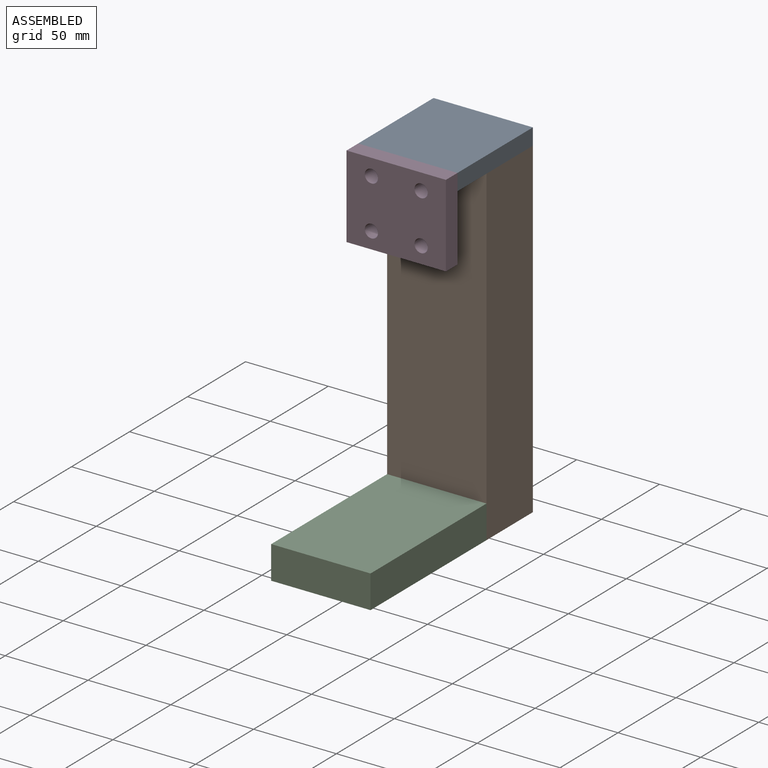
[diagram: assembled view]
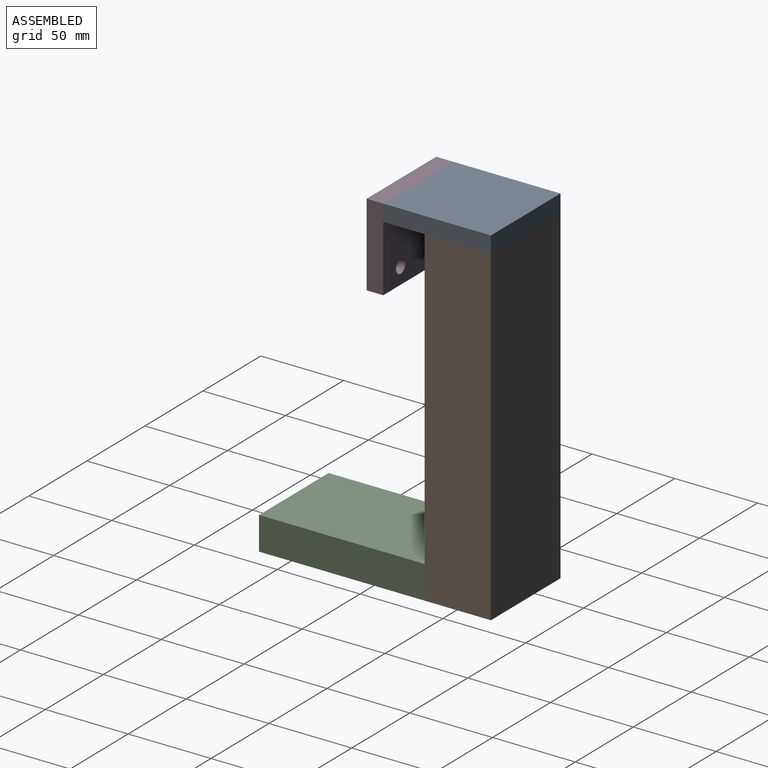
[diagram: assembled view, second angle]
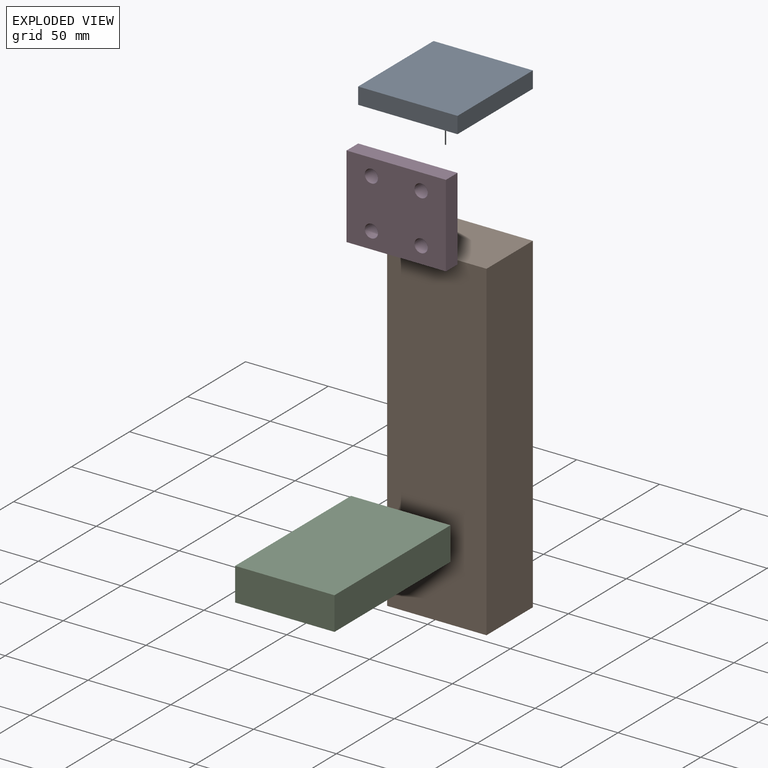
[diagram: exploded view]
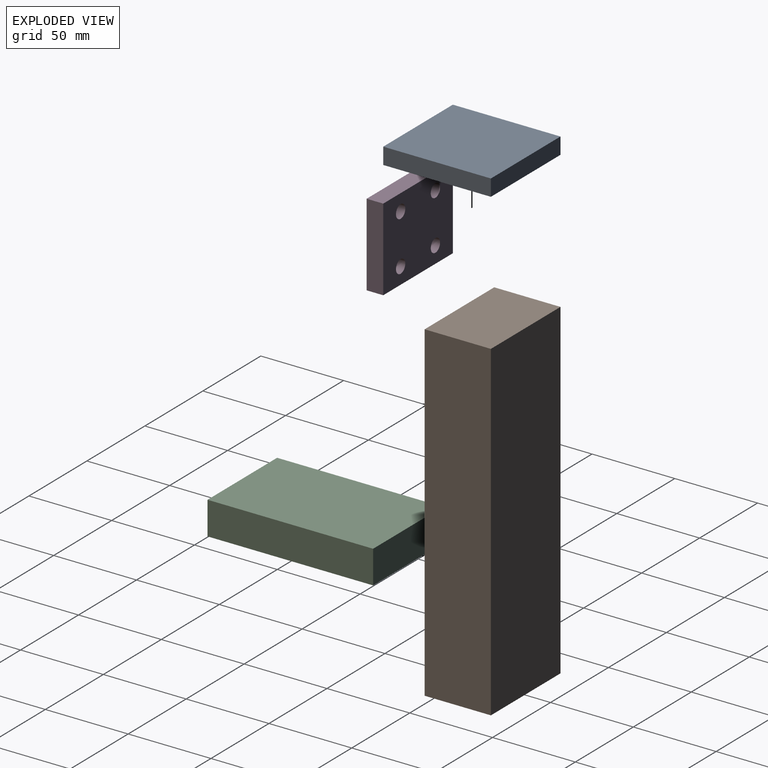
[diagram: exploded view, second angle]
ASSEMBLY  parts=4 mates=3
PART A: 6 faces, bbox 60x65x10 mm
  f0: plane 65x60mm, normal (0,0,-1), area 3900mm2, adj f1,f3,f4,f5
  f1: plane 65x10mm, normal (1,0,0), area 650mm2, adj f0,f2,f4,f5
  f2: plane 65x60mm, normal (0,0,1), area 3900mm2, adj f1,f3,f4,f5
  f3: plane 65x10mm, normal (-1,0,0), area 650mm2, adj f0,f2,f4,f5
  f4: plane 60x10mm, normal (0,-1,0), area 600mm2, adj f0,f1,f2,f3
  f5: plane 60x10mm, normal (0,1,0), area 600mm2, adj f0,f1,f2,f3
PART B: 6 faces, bbox 60x40x200 mm
  f0: plane 200x60mm, normal (0,-1,0), area 12000mm2, adj f1,f3,f4,f5
  f1: plane 200x40mm, normal (1,0,0), area 8000mm2, adj f0,f2,f4,f5
  f2: plane 200x60mm, normal (0,1,0), area 12000mm2, adj f1,f3,f4,f5
  f3: plane 200x40mm, normal (-1,0,0), area 8000mm2, adj f0,f2,f4,f5
  f4: plane 60x40mm, normal (0,0,1), area 2400mm2, adj f0,f1,f2,f3
  f5: plane 60x40mm, normal (0,0,-1), area 2400mm2, adj f0,f1,f2,f3
PART C: 6 faces, bbox 60x100x20 mm
  f0: plane 100x60mm, normal (0,0,-1), area 6000mm2, adj f1,f3,f4,f5
  f1: plane 100x20mm, normal (1,0,0), area 2000mm2, adj f0,f2,f4,f5
  f2: plane 100x60mm, normal (0,0,1), area 6000mm2, adj f1,f3,f4,f5
  f3: plane 100x20mm, normal (-1,0,0), area 2000mm2, adj f0,f2,f4,f5
  f4: plane 60x20mm, normal (0,-1,0), area 1200mm2, adj f0,f1,f2,f3
  f5: plane 60x20mm, normal (0,1,0), area 1200mm2, adj f0,f1,f2,f3
PART D: 10 faces, bbox 60x10x50 mm
  f0: plane 60x10mm, normal (0,0,-1), area 600mm2, adj f1,f7,f8,f9
  f1: plane 50x10mm, normal (1,0,0), area 500mm2, adj f0,f2,f8,f9
  f2: plane 60x10mm, normal (0,0,1), area 600mm2, adj f1,f7,f8,f9
  f3: cylinder r=4mm len=10mm, axis (0,1,0), area 251.3mm2, adj f8,f9
  f4: cylinder r=4mm len=10mm, axis (0,1,0), area 251.3mm2, adj f8,f9
  f5: cylinder r=4mm len=10mm, axis (0,1,0), area 251.3mm2, adj f8,f9
  f6: cylinder r=4mm len=10mm, axis (0,1,0), area 251.3mm2, adj f8,f9
  f7: plane 50x10mm, normal (-1,0,0), area 500mm2, adj f0,f2,f8,f9
  f8: plane 60x50mm, normal (0,-1,0), area 2798.9mm2, adj f0,f1,f2,f3,f4,f5,f6,f7
  f9: plane 60x50mm, normal (0,1,0), area 2798.9mm2, adj f0,f1,f2,f3,f4,f5,f6,f7
PLACE A t=(-43.9,39.3,196.96)mm
PLACE B t=(-43.9,19.3,-8.04)mm
PLACE C t=(-43.9,-0.7,1.96)mm
PLACE D t=(-43.9,-25.7,176.96)mm
MATE fastened D.f9 <-> A.f4  axis (0,1,0) through (-43.9,-25.7,201.96)mm
MATE fastened C.f5 <-> B.f0  axis (0,1,0) through (-43.9,-0.7,-8.04)mm
MATE fastened A.f0 <-> B.f4  axis (0,0,-1) through (-43.9,39.3,191.96)mm
